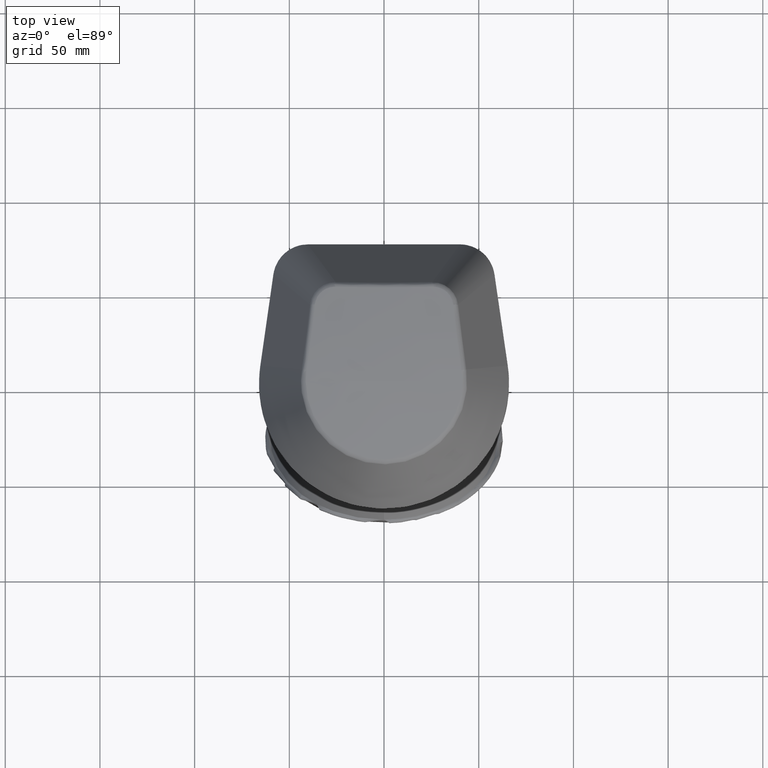
[diagram: clean part render]
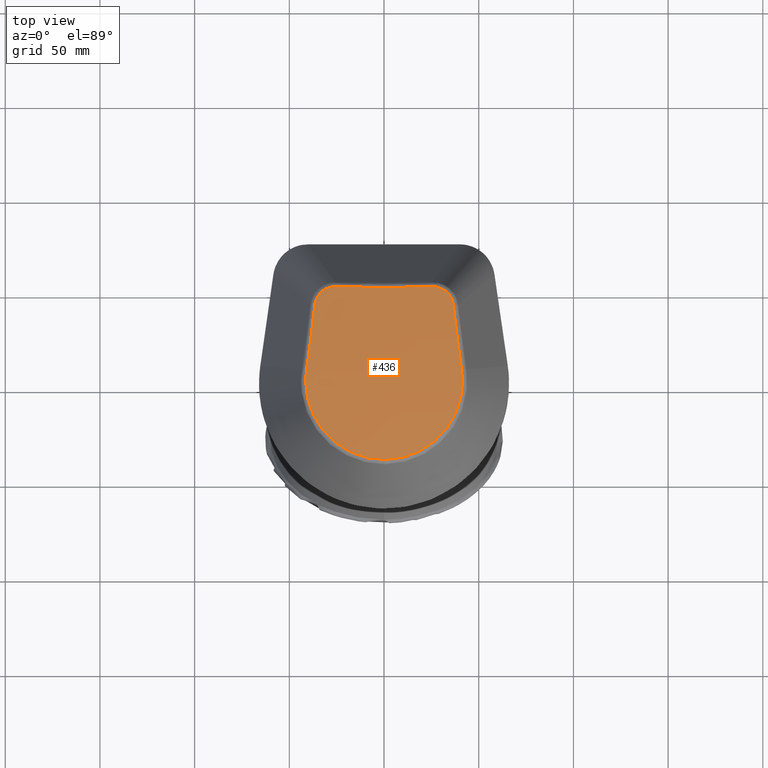
[diagram: same view with one face highlighted and labeled with its STEP entity id]
A machine part, top view. The second image highlights one B-rep face of the part: STEP entity #436.
In plain terms, the highlighted spherical surface has radius 376.228 mm.
Its self-contained STEP definition (entity closure, byte-faithful):
#286=SPHERICAL_SURFACE('',#3128,376.228);
#289=CIRCLE('',#3126,340.930109634634);
#290=CIRCLE('',#3127,343.589026800446);
#436=ADVANCED_FACE('',(#646),#286,.T.);
#646=FACE_OUTER_BOUND('',#828,.T.);
#828=EDGE_LOOP('',(#1297,#1298,#1299,#1300,#1301,#1302));
#1297=ORIENTED_EDGE('',*,*,#2492,.T.);
#1298=ORIENTED_EDGE('',*,*,#2493,.T.);
#1299=ORIENTED_EDGE('',*,*,#2494,.T.);
#1300=ORIENTED_EDGE('',*,*,#2495,.T.);
#1301=ORIENTED_EDGE('',*,*,#2496,.T.);
#1302=ORIENTED_EDGE('',*,*,#2497,.T.);
#2215=VERTEX_POINT('',#4224);
#2216=VERTEX_POINT('',#4225);
#2217=VERTEX_POINT('',#4230);
#2218=VERTEX_POINT('',#4253);
#2219=VERTEX_POINT('',#4255);
#2220=VERTEX_POINT('',#4280);
#2492=EDGE_CURVE('',#2215,#2216,#2950,.T.);
#2493=EDGE_CURVE('',#2216,#2217,#2951,.T.);
#2494=EDGE_CURVE('',#2217,#2218,#2952,.T.);
#2495=EDGE_CURVE('',#2218,#2219,#289,.T.);
#2496=EDGE_CURVE('',#2219,#2220,#2953,.T.);
#2497=EDGE_CURVE('',#2220,#2215,#290,.T.);
#2950=B_SPLINE_CURVE_WITH_KNOTS('',3,(#4152,#4153,#4154,#4155,#4156,#4157,
#4158,#4159,#4160,#4161,#4162,#4163,#4164,#4165,#4166,#4167,#4168,#4169,
#4170,#4171,#4172,#4173,#4174,#4175,#4176,#4177,#4178,#4179,#4180,#4181,
#4182,#4183,#4184,#4185,#4186,#4187,#4188,#4189,#4190,#4191,#4192,#4193,
#4194,#4195,#4196,#4197,#4198,#4199,#4200,#4201,#4202,#4203,#4204,#4205,
#4206,#4207,#4208,#4209,#4210,#4211,#4212,#4213,#4214,#4215,#4216,#4217,
#4218,#4219,#4220,#4221,#4222,#4223),.UNSPECIFIED.,.F.,.F.,(4,2,2,2,2,2,
2,2,2,2,2,2,2,2,2,2,2,2,2,2,2,2,2,2,2,2,2,2,2,2,2,2,2,2,2,4),(0.,0.03125,
0.0624999999999999,0.0937499999999999,0.109375,0.125,0.1875,0.203125,0.21875,
0.25,0.28125,0.296875,0.3125,0.375,0.40625,0.421875,0.4375,0.5,0.515625,
0.53125,0.562499999999999,0.593749999999999,0.609374999999999,0.624999999999999,
0.6875,0.703125,0.71875,0.75,0.78125,0.796875,0.8125,0.875,0.890625,0.90625,
0.9375,1.),.UNSPECIFIED.);
#2951=B_SPLINE_CURVE_WITH_KNOTS('',3,(#4226,#4227,#4228,#4229),.UNSPECIFIED.,
 .F.,.F.,(4,4),(0.,1.),.UNSPECIFIED.);
#2952=B_SPLINE_CURVE_WITH_KNOTS('',3,(#4231,#4232,#4233,#4234,#4235,#4236,
#4237,#4238,#4239,#4240,#4241,#4242,#4243,#4244,#4245,#4246,#4247,#4248,
#4249,#4250,#4251,#4252),.UNSPECIFIED.,.F.,.F.,(4,2,2,2,2,2,2,2,2,2,4),(0.,
0.124999999999999,0.249999999999999,0.374999999999998,0.499999999999998,
0.562499999999998,0.624999999999998,0.749999999999999,0.812499999999999,
0.874999999999999,1.),.UNSPECIFIED.);
#2953=B_SPLINE_CURVE_WITH_KNOTS('',3,(#4256,#4257,#4258,#4259,#4260,#4261,
#4262,#4263,#4264,#4265,#4266,#4267,#4268,#4269,#4270,#4271,#4272,#4273,
#4274,#4275,#4276,#4277,#4278,#4279),.UNSPECIFIED.,.F.,.F.,(4,2,2,2,2,2,
2,2,2,2,2,4),(0.,0.0624999999999998,0.125,0.25,0.375,0.500000000000001,0.562500000000001,
0.625000000000001,0.750000000000001,0.8125,0.875,1.),.UNSPECIFIED.);
#3126=AXIS2_PLACEMENT_3D('',#4254,#3401,#3402);
#3127=AXIS2_PLACEMENT_3D('',#4281,#3403,#3404);
#3128=AXIS2_PLACEMENT_3D('',#4282,#3405,#3406);
#3401=DIRECTION('',(-6.29360148765005E-017,-0.954048608165815,-0.299651886790108));
#3402=DIRECTION('',(0.,-0.299651886790108,0.954048608165815));
#3403=DIRECTION('',(0.942862393782954,-0.135168659865798,-0.304532329613723));
#3404=DIRECTION('',(-0.307353029958497,0.,-0.951595562713137));
#3405=DIRECTION('',(-6.12323399573677E-017,0.,1.));
#3406=DIRECTION('',(-1.,0.,0.));
#4152=CARTESIAN_POINT('',(-40.9448482056208,6.02165897069418,202.923982529203));
#4153=CARTESIAN_POINT('',(-41.1563359495684,4.54643652850798,202.923982529203));
#4154=CARTESIAN_POINT('',(-41.2877128005785,3.05818222104106,202.923982529309));
#4155=CARTESIAN_POINT('',(-41.3898514909916,0.102580284151866,202.923982529766));
#4156=CARTESIAN_POINT('',(-41.3615952965375,-1.36893636412843,202.923982530115));
#4157=CARTESIAN_POINT('',(-41.1494691950339,-4.29964164633092,202.923982531087));
#4158=CARTESIAN_POINT('',(-40.9655973241097,-5.75883012467121,202.923982531709));
#4159=CARTESIAN_POINT('',(-40.5713205270894,-7.93822750336303,202.923982532868));
#4160=CARTESIAN_POINT('',(-40.4201086050879,-8.6631257861103,202.923982533293));
#4161=CARTESIAN_POINT('',(-40.0772906877882,-10.1097222562708,202.923982534221));
#4162=CARTESIAN_POINT('',(-39.8857265394679,-10.8306009789316,202.923982534725));
#4163=CARTESIAN_POINT('',(-38.8386304494663,-14.3835718572869,202.923982537419));
#4164=CARTESIAN_POINT('',(-37.7106132491722,-17.0975332387716,202.923982540152));
#4165=CARTESIAN_POINT('',(-35.9430065673913,-20.3318277568187,202.923982544296));
#4166=CARTESIAN_POINT('',(-35.5714137740385,-20.9706937923054,202.923982545161));
#4167=CARTESIAN_POINT('',(-34.7914340692298,-22.2321521044032,202.923982546964));
#4168=CARTESIAN_POINT('',(-34.381773598706,-22.8564637578612,202.923982547905));
#4169=CARTESIAN_POINT('',(-33.1099343169036,-24.6851205606783,202.923982550805));
#4170=CARTESIAN_POINT('',(-32.2032860095022,-25.8490707666076,202.923982552848));
#4171=CARTESIAN_POINT('',(-30.275933840844,-28.0699060931527,202.923982557122));
#4172=CARTESIAN_POINT('',(-29.2552216680128,-29.1267834116106,202.923982559354));
#4173=CARTESIAN_POINT('',(-27.6382072459939,-30.6314208695892,202.923982562824));
#4174=CARTESIAN_POINT('',(-27.0848480007652,-31.1194920349834,202.923982564001));
#4175=CARTESIAN_POINT('',(-25.9489809861687,-32.0682723556089,202.923982566391));
#4176=CARTESIAN_POINT('',(-25.3654151837469,-32.529767762746,202.923982567606));
#4177=CARTESIAN_POINT('',(-22.384647164339,-34.7584846916664,202.923982573741));
#4178=CARTESIAN_POINT('',(-19.8514390434805,-36.25578007278,202.923982578686));
#4179=CARTESIAN_POINT('',(-15.8365668917914,-38.0882605624954,202.923982587605));
#4180=CARTESIAN_POINT('',(-14.462123339497,-38.6295819214244,202.923982590778));
#4181=CARTESIAN_POINT('',(-12.344356466694,-39.333706187216,202.923982595872));
#4182=CARTESIAN_POINT('',(-11.6313679312472,-39.5495135204827,202.92398259762));
#4183=CARTESIAN_POINT('',(-10.2031974610319,-39.9403160158338,202.923982601191));
#4184=CARTESIAN_POINT('',(-9.48627412686472,-40.1159024212713,202.923982603017));
#4185=CARTESIAN_POINT('',(-5.88768949837183,-40.8963139350619,202.92398261236));
#4186=CARTESIAN_POINT('',(-2.96460246685653,-41.2119157183003,202.923982620502));
#4187=CARTESIAN_POINT('',(0.74580915660053,-41.2115813114312,202.923982631583));
#4188=CARTESIAN_POINT('',(1.49237814689096,-41.1913754010013,202.92398263385));
#4189=CARTESIAN_POINT('',(2.97411061216662,-41.111258647548,202.923982638423));
#4190=CARTESIAN_POINT('',(3.71107080208271,-41.0514348069701,202.923982640733));
#4191=CARTESIAN_POINT('',(5.91044771126658,-40.8137521484818,202.923982647737));
#4192=CARTESIAN_POINT('',(7.36139287789074,-40.577844667193,202.923982652501));
#4193=CARTESIAN_POINT('',(10.2330038808427,-39.9528094120963,202.923982662202));
#4194=CARTESIAN_POINT('',(11.6536707978721,-39.5636871068848,202.923982667139));
#4195=CARTESIAN_POINT('',(13.7614265473282,-38.8623805585348,202.923982674659));
#4196=CARTESIAN_POINT('',(14.4619570830526,-38.6082291826567,202.923982677191));
#4197=CARTESIAN_POINT('',(15.8460677448661,-38.0632521205298,202.923982682259));
#4198=CARTESIAN_POINT('',(16.527819493121,-37.7732775460712,202.923982684786));
#4199=CARTESIAN_POINT('',(19.8861393343037,-36.2378056325883,202.923982697387));
#4200=CARTESIAN_POINT('',(22.4130981336918,-34.7384087823393,202.923982706869));
#4201=CARTESIAN_POINT('',(25.3717744127414,-32.5247082462287,202.923982720148));
#4202=CARTESIAN_POINT('',(25.9534017070701,-32.0648140811348,202.923982722878));
#4203=CARTESIAN_POINT('',(27.0959862737811,-31.1099469911649,202.923982728497));
#4204=CARTESIAN_POINT('',(27.6534649822032,-30.6178000696527,202.923982731368));
#4205=CARTESIAN_POINT('',(29.2775632398297,-29.1048062440789,202.923982740134));
#4206=CARTESIAN_POINT('',(30.29934970987,-28.0447105116637,202.923982746194));
#4207=CARTESIAN_POINT('',(32.2236052971297,-25.8238249707126,202.923982758767));
#4208=CARTESIAN_POINT('',(33.1260715335649,-24.6630327310306,202.92398276528));
#4209=CARTESIAN_POINT('',(34.3891138040191,-22.8453372154122,202.923982775409));
#4210=CARTESIAN_POINT('',(34.7949866641583,-22.226660751834,202.923982778845));
#4211=CARTESIAN_POINT('',(35.5758534340825,-20.9632485189355,202.923982785842));
#4212=CARTESIAN_POINT('',(35.9511023095337,-20.317765291146,202.923982789407));
#4213=CARTESIAN_POINT('',(37.7273401879235,-17.0638473442194,202.923982807329));
#4214=CARTESIAN_POINT('',(38.8508733528733,-14.3475306417803,202.923982822151));
#4215=CARTESIAN_POINT('',(39.8904094809791,-10.8132979166817,202.923982841257));
#4216=CARTESIAN_POINT('',(40.0798760432042,-10.0994347051924,202.923982845107));
#4217=CARTESIAN_POINT('',(40.4213018827457,-8.65743677241384,202.923982852863));
#4218=CARTESIAN_POINT('',(40.5736317752052,-7.92706483970624,202.923982856781));
#4219=CARTESIAN_POINT('',(40.9696743693488,-5.73296373859012,202.923982868518));
#4220=CARTESIAN_POINT('',(41.1529172264683,-4.26811144360831,202.923982876309));
#4221=CARTESIAN_POINT('',(41.4678960708997,0.132600668499834,202.923982899544));
#4222=CARTESIAN_POINT('',(41.3675840670673,3.0745448722487,202.923983018228));
#4223=CARTESIAN_POINT('',(40.9443718004689,6.02495564375162,202.923982929834));
#4224=CARTESIAN_POINT('',(-40.9448482056209,6.02165897069419,202.923982529203));
#4225=CARTESIAN_POINT('',(40.9443718004689,6.02495564375162,202.923982929834));
#4226=CARTESIAN_POINT('',(40.9443718004968,6.02495564375562,202.923982929831));
#4227=CARTESIAN_POINT('',(39.2928714970697,17.5387059783594,202.923976792175));
#4228=CARTESIAN_POINT('',(37.8199630003565,29.0746565835141,202.361111856913));
#4229=CARTESIAN_POINT('',(36.5300264173204,40.5798307175984,201.238218455801));
#4230=CARTESIAN_POINT('',(36.5300264172539,40.5798307175916,201.238218455808));
#4231=CARTESIAN_POINT('',(36.5300264172539,40.5798307175916,201.238218455808));
#4232=CARTESIAN_POINT('',(36.4562054724591,41.2382924681623,201.173952816882));
#4233=CARTESIAN_POINT('',(36.3247411023067,41.8797794618466,201.115416246396));
#4234=CARTESIAN_POINT('',(35.9499490501223,43.1298179001739,201.00952970838));
#4235=CARTESIAN_POINT('',(35.7066563398302,43.7383796106987,200.962175879785));
#4236=CARTESIAN_POINT('',(35.10041890535,44.9202799557878,200.879500894058));
#4237=CARTESIAN_POINT('',(34.7403685618873,45.4849196396516,200.844897968767));
#4238=CARTESIAN_POINT('',(33.9313614809184,46.5252022611837,200.791320335998));
#4239=CARTESIAN_POINT('',(33.4819888900257,47.0036055974838,200.77208275596));
#4240=CARTESIAN_POINT('',(32.7400029206886,47.6580245223631,200.754679968391));
#4241=CARTESIAN_POINT('',(32.4799169611287,47.86652922521,200.750793355169));
#4242=CARTESIAN_POINT('',(31.9429241598965,48.256524664275,200.747061849177));
#4243=CARTESIAN_POINT('',(31.6671218148538,48.4374418336344,200.747200401072));
#4244=CARTESIAN_POINT('',(30.8184422262813,48.9391953525091,200.75345086049));
#4245=CARTESIAN_POINT('',(30.2244651273417,49.2193665242888,200.765351067052));
#4246=CARTESIAN_POINT('',(29.2905589330926,49.5568657139186,200.794960843715));
#4247=CARTESIAN_POINT('',(28.9715015593453,49.6554354740063,200.80684681179));
#4248=CARTESIAN_POINT('',(28.3324435114705,49.8206633373481,200.834055135372));
#4249=CARTESIAN_POINT('',(28.0108045672512,49.8879887561315,200.84942147263));
#4250=CARTESIAN_POINT('',(27.0397167977601,50.0452542256444,200.900664030496));
#4251=CARTESIAN_POINT('',(26.3841475170155,50.0908490334234,200.941642282634));
#4252=CARTESIAN_POINT('',(25.7202060972896,50.0757969968463,200.989565807162));
#4253=CARTESIAN_POINT('',(25.7202060972896,50.0757969968463,200.989565807162));
#4254=CARTESIAN_POINT('',(1.05129889848681E-014,151.945015702843,-123.347408548254));
#4255=CARTESIAN_POINT('',(-25.725707429171,50.0759217294699,200.989168676388));
#4256=CARTESIAN_POINT('',(-25.725707429171,50.0759217294699,200.989168676388));
#4257=CARTESIAN_POINT('',(-26.0575956083238,50.0834474952925,200.965207717939));
#4258=CARTESIAN_POINT('',(-26.3889155566351,50.0757604204573,200.942881884823));
#4259=CARTESIAN_POINT('',(-27.0504154182512,50.0298502508156,200.901520740063));
#4260=CARTESIAN_POINT('',(-27.3813025812335,49.9914123838539,200.882458653534));
#4261=CARTESIAN_POINT('',(-28.3584295481658,49.8318159710999,200.831025144094));
#4262=CARTESIAN_POINT('',(-28.9934836554637,49.6667147421618,200.804067445857));
#4263=CARTESIAN_POINT('',(-30.2308129312727,49.2189143726281,200.764887394966));
#4264=CARTESIAN_POINT('',(-30.837556355737,48.932503222764,200.75274546862));
#4265=CARTESIAN_POINT('',(-31.9695104815676,48.2609577102641,200.744637300087));
#4266=CARTESIAN_POINT('',(-32.5001613305818,47.8748971955674,200.748388322097));
#4267=CARTESIAN_POINT('',(-33.2426402689392,47.2196516082447,200.765833724005));
#4268=CARTESIAN_POINT('',(-33.4823454714164,46.9870967627997,200.773692787602));
#4269=CARTESIAN_POINT('',(-33.9350002209526,46.5043452300103,200.793151530034));
#4270=CARTESIAN_POINT('',(-34.1484673947808,46.2539535324251,200.804735623251));
#4271=CARTESIAN_POINT('',(-34.751453238039,45.4765469738497,200.844877508867));
#4272=CARTESIAN_POINT('',(-35.1038564472923,44.9235111659776,200.878782397792));
#4273=CARTESIAN_POINT('',(-35.5570913040029,44.0411147885516,200.940458658171));
#4274=CARTESIAN_POINT('',(-35.6952372392821,43.7382372257158,200.962839624503));
#4275=CARTESIAN_POINT('',(-35.9406614617783,43.1275291774405,201.010261776005));
#4276=CARTESIAN_POINT('',(-36.0487886755912,42.8181414652957,201.035408403431));
#4277=CARTESIAN_POINT('',(-36.3305368429581,41.8781862837047,201.115032074295));
#4278=CARTESIAN_POINT('',(-36.4618666352878,41.2359214697838,201.173659546578));
#4279=CARTESIAN_POINT('',(-36.5354767355966,40.5776888864882,201.237916175111));
#4280=CARTESIAN_POINT('',(-36.5354767355966,40.5776888864882,201.237916175111));
#4281=CARTESIAN_POINT('',(-144.519887795851,20.8701664403656,-124.34525271524));
#4282=CARTESIAN_POINT('',(4.99600361081321E-016,0.151809566523056,-171.023302869944));